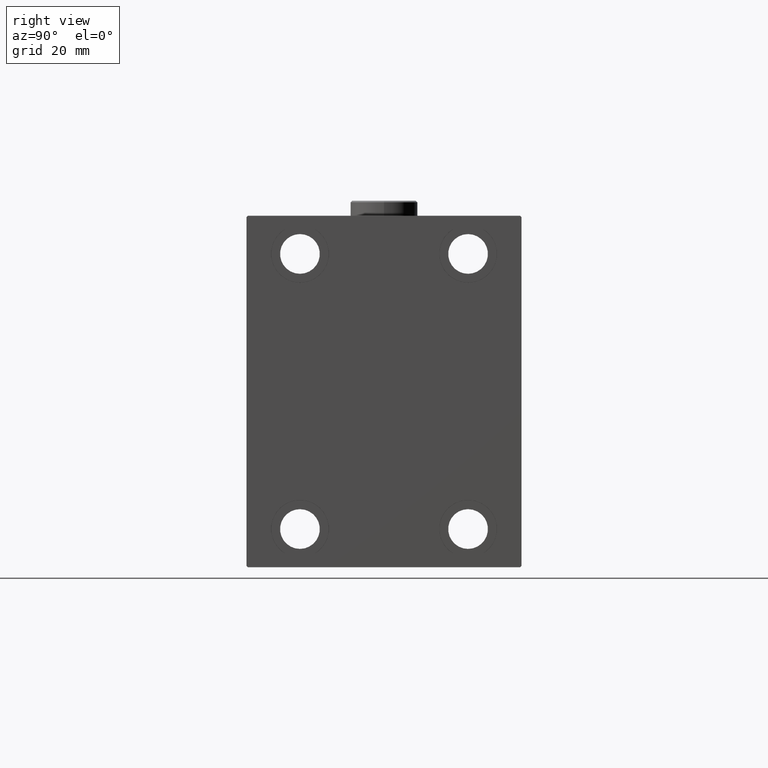
[diagram: clean part render]
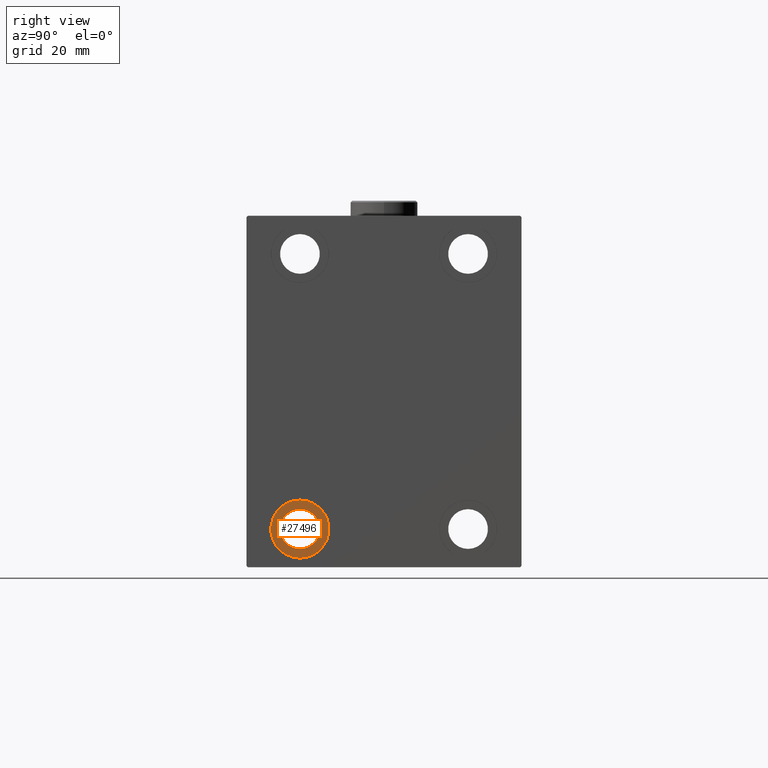
[diagram: same view with one face highlighted and labeled with its STEP entity id]
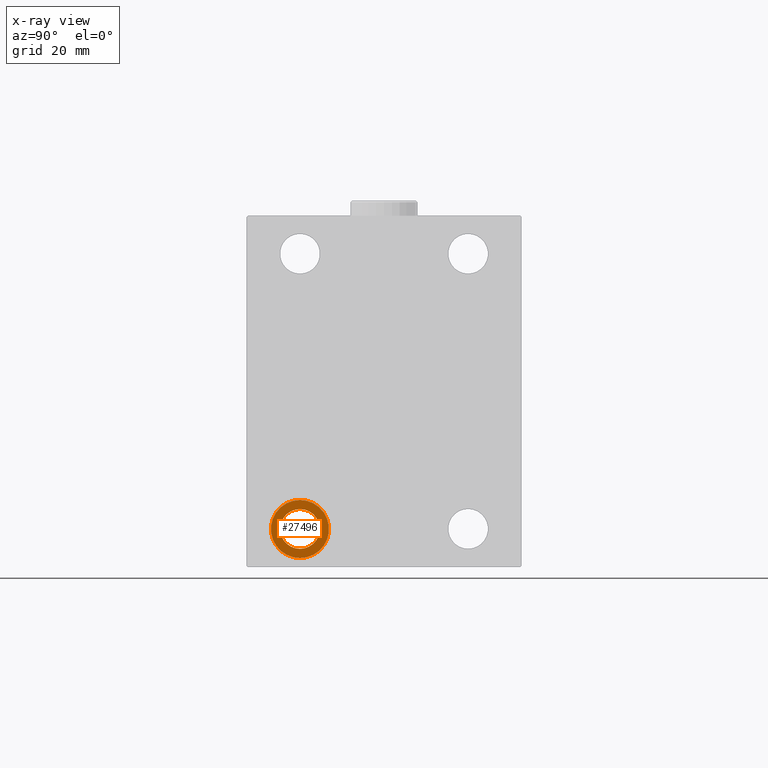
[diagram: x-ray of the same camera — body ghosted, the highlighted face saturated]
A machine part, right view. The second image highlights one B-rep face of the part: STEP entity #27496.
The next image is the same camera in x-ray: the body ghosted, the highlighted face saturated — about 0% of this face is hidden behind the body in this view.
In plain terms, the highlighted planar face has unit normal (1, 0, 0).
Its self-contained STEP definition (entity closure, byte-faithful):
#550 = FACE_BOUND ( 'NONE', #14957, .T. ) ;
#1162 = ORIENTED_EDGE ( 'NONE', *, *, #5852, .T. ) ;
#4345 = VERTEX_POINT ( 'NONE', #7939 ) ;
#5405 = CARTESIAN_POINT ( 'NONE',  ( 115.0000000000000000, -27.50000000000000000, -44.99999999999998579 ) ) ;
#5852 = EDGE_CURVE ( 'NONE', #4345, #42333, #44367, .T. ) ;
#7278 = DIRECTION ( 'NONE',  ( -1.000000000000000000, -0.000000000000000000, -0.000000000000000000 ) ) ;
#7939 = CARTESIAN_POINT ( 'NONE',  ( 115.0000000000000000, -27.50000000000000000, -38.49999999999998579 ) ) ;
#9092 = DIRECTION ( 'NONE',  ( -1.000000000000000000, -0.000000000000000000, -0.000000000000000000 ) ) ;
#10773 = FACE_OUTER_BOUND ( 'NONE', #46311, .T. ) ;
#11157 = VERTEX_POINT ( 'NONE', #42015 ) ;
#11268 = CIRCLE ( 'NONE', #27953, 9.500000000000001776 ) ;
#12519 = ORIENTED_EDGE ( 'NONE', *, *, #41765, .F. ) ;
#13615 = DIRECTION ( 'NONE',  ( -1.000000000000000000, -0.000000000000000000, -0.000000000000000000 ) ) ;
#14957 = EDGE_LOOP ( 'NONE', ( #1162, #15972 ) ) ;
#15506 = CIRCLE ( 'NONE', #20802, 9.500000000000001776 ) ;
#15524 = DIRECTION ( 'NONE',  ( 0.000000000000000000, 0.000000000000000000, -1.000000000000000000 ) ) ;
#15972 = ORIENTED_EDGE ( 'NONE', *, *, #37312, .T. ) ;
#16110 = DIRECTION ( 'NONE',  ( 0.000000000000000000, 0.000000000000000000, 1.000000000000000000 ) ) ;
#18369 = CARTESIAN_POINT ( 'NONE',  ( 115.0000000000000000, -27.50000000000000000, -44.99999999999998579 ) ) ;
#20802 = AXIS2_PLACEMENT_3D ( 'NONE', #5405, #42468, #16110 ) ;
#20840 = CARTESIAN_POINT ( 'NONE',  ( 115.0000000000000000, -27.50000000000000000, -35.49999999999998579 ) ) ;
#22195 = DIRECTION ( 'NONE',  ( 1.000000000000000000, 0.000000000000000000, -0.000000000000000000 ) ) ;
#22512 = EDGE_CURVE ( 'NONE', #11157, #27075, #11268, .T. ) ;
#23869 = AXIS2_PLACEMENT_3D ( 'NONE', #43874, #7278, #25807 ) ;
#25282 = PLANE ( 'NONE',  #38715 ) ;
#25807 = DIRECTION ( 'NONE',  ( 0.000000000000000000, 0.000000000000000000, -1.000000000000000000 ) ) ;
#27075 = VERTEX_POINT ( 'NONE', #20840 ) ;
#27496 = ADVANCED_FACE ( 'NONE', ( #10773, #550 ), #25282, .T. ) ;
#27953 = AXIS2_PLACEMENT_3D ( 'NONE', #18369, #13615, #28113 ) ;
#28113 = DIRECTION ( 'NONE',  ( 0.000000000000000000, 0.000000000000000000, 1.000000000000000000 ) ) ;
#29778 = AXIS2_PLACEMENT_3D ( 'NONE', #37853, #9092, #15524 ) ;
#33982 = ORIENTED_EDGE ( 'NONE', *, *, #22512, .F. ) ;
#36685 = DIRECTION ( 'NONE',  ( 0.000000000000000000, 0.000000000000000000, 1.000000000000000000 ) ) ;
#37312 = EDGE_CURVE ( 'NONE', #42333, #4345, #43434, .T. ) ;
#37853 = CARTESIAN_POINT ( 'NONE',  ( 115.0000000000000000, -27.50000000000000000, -44.99999999999998579 ) ) ;
#38715 = AXIS2_PLACEMENT_3D ( 'NONE', #46901, #22195, #36685 ) ;
#38786 = CARTESIAN_POINT ( 'NONE',  ( 115.0000000000000000, -27.50000000000000000, -51.49999999999998579 ) ) ;
#41765 = EDGE_CURVE ( 'NONE', #27075, #11157, #15506, .T. ) ;
#42015 = CARTESIAN_POINT ( 'NONE',  ( 115.0000000000000000, -27.50000000000000000, -54.49999999999998579 ) ) ;
#42333 = VERTEX_POINT ( 'NONE', #38786 ) ;
#42468 = DIRECTION ( 'NONE',  ( -1.000000000000000000, -0.000000000000000000, -0.000000000000000000 ) ) ;
#43434 = CIRCLE ( 'NONE', #29778, 6.499999999999999112 ) ;
#43874 = CARTESIAN_POINT ( 'NONE',  ( 115.0000000000000000, -27.50000000000000000, -44.99999999999998579 ) ) ;
#44367 = CIRCLE ( 'NONE', #23869, 6.499999999999999112 ) ;
#46311 = EDGE_LOOP ( 'NONE', ( #33982, #12519 ) ) ;
#46901 = CARTESIAN_POINT ( 'NONE',  ( 115.0000000000000000, 0.000000000000000000, 0.000000000000000000 ) ) ;